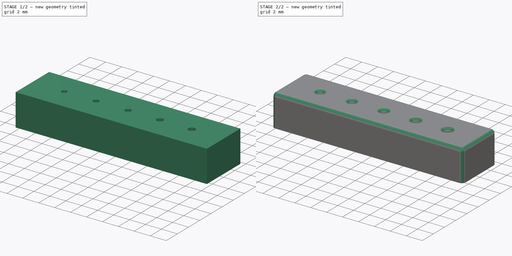
[diagram: build sequence overview — one tinted view per stage of 2, left to right]
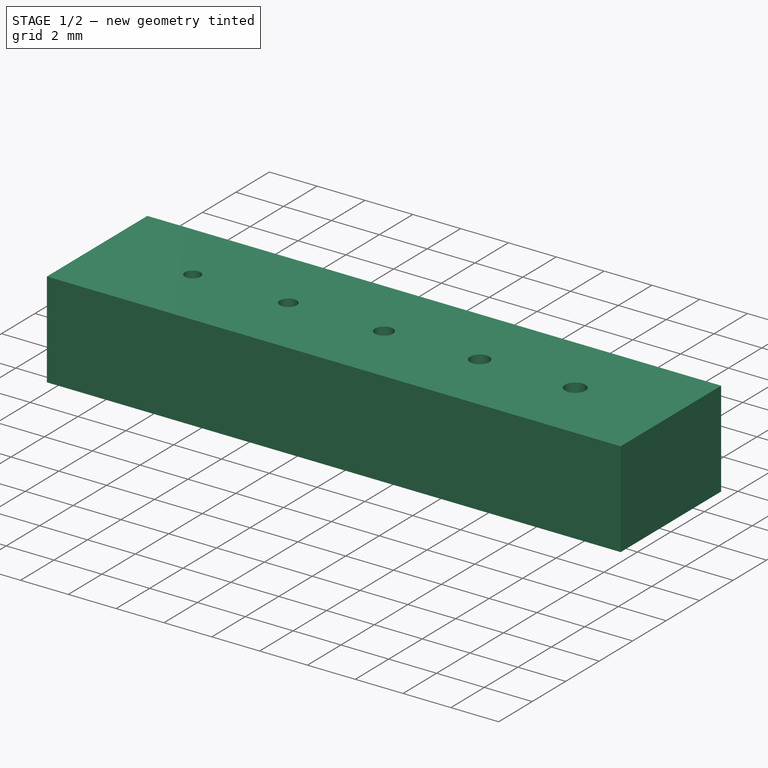
[diagram: stage 1 of 2 — iso view after this stage's code; geometry added in this stage tinted green]
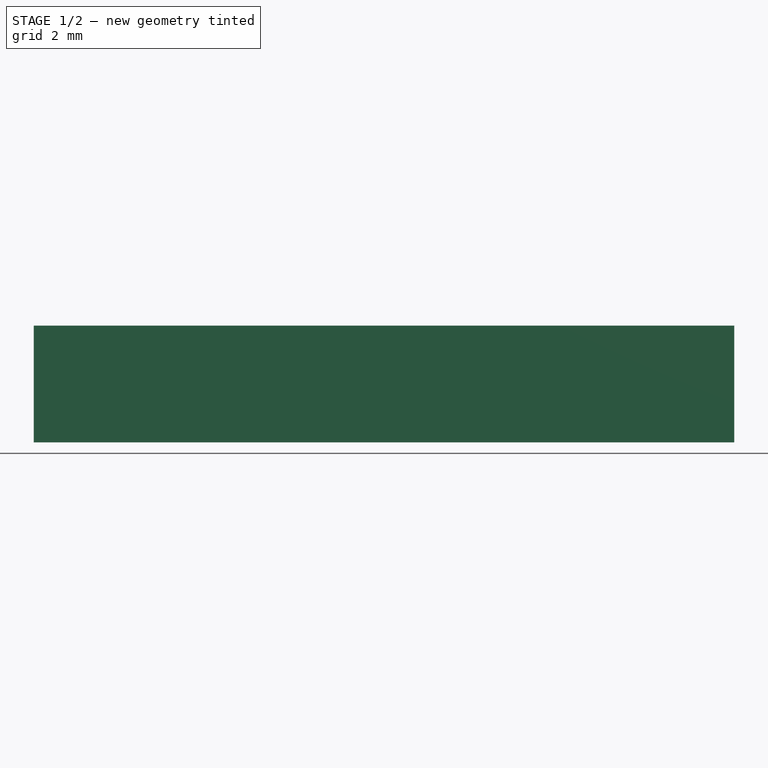
[diagram: stage 1 of 2 — front view after this stage's code; geometry added in this stage tinted green]
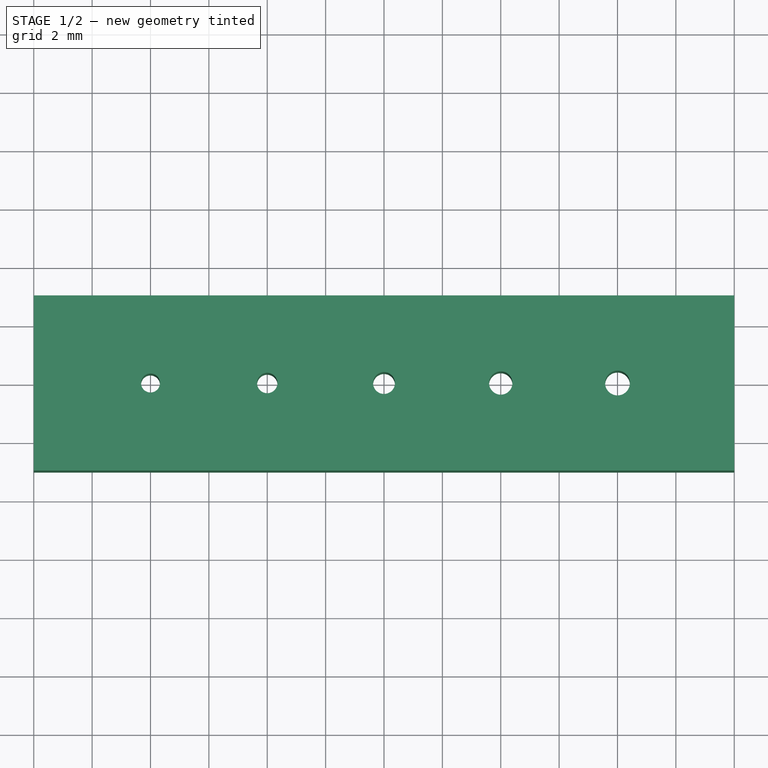
[diagram: stage 1 of 2 — top view after this stage's code; geometry added in this stage tinted green]
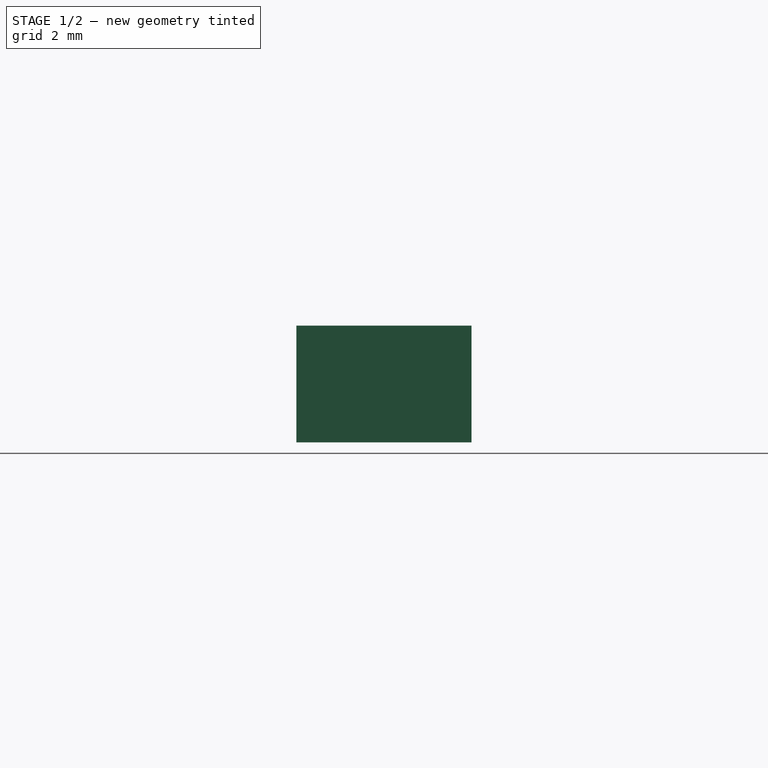
[diagram: stage 1 of 2 — right view after this stage's code; geometry added in this stage tinted green]
FCSTD DOCUMENT  (FreeCAD 0.19R23578 (Git))
Label: SmallHoleTest
License: All rights reserved
LicenseURL: http://en.wikipedia.org/wiki/All_rights_reserved
objects: Sketcher::SketchObject×1, PartDesign::Pad×1, PartDesign::Fillet×1, PartDesign::Body×1
note: 6 computed .brp shape members not serialized (recipe doc carries the construction recipe); baked Part::Feature solids carry a one-line shape summary decoded from their .brp

FEATURE [Sketcher::SketchObject] Sketch
  MapMode = 5
  Support = -> [XY_Plane]
  expr: Constraints[20] = .Constraints.R1 + 0.2mm
  expr: Constraints[19] = .Constraints.R1 + 0.15mm
  expr: Constraints[18] = .Constraints.R1 + 0.1mm
  expr: Constraints[5] = .Constraints.R1 + 0.05mm
  expr: Constraints[37] = .Constraints.Dist * 1.5
  sketch-geometry (15):
    g0: Circle CenterX=-8 CenterY=1e-16 CenterZ=0 NormalX=0 NormalY=0 NormalZ=1 AngleXU=0 Radius=0.325
    g1: Circle CenterX=-4 CenterY=1e-16 CenterZ=0 NormalX=0 NormalY=0 NormalZ=1 AngleXU=0 Radius=0.35
    g2: Circle CenterX=0 CenterY=1e-16 CenterZ=0 NormalX=0 NormalY=0 NormalZ=1 AngleXU=0 Radius=0.375
    g3: Circle CenterX=4 CenterY=1e-16 CenterZ=0 NormalX=0 NormalY=0 NormalZ=1 AngleXU=0 Radius=0.4
    g4: LineSegment StartX=-8 StartY=1e-16 StartZ=0 EndX=-4 EndY=1e-16 EndZ=0
    g5: LineSegment StartX=-4 StartY=1e-16 StartZ=0 EndX=0 EndY=1e-16 EndZ=0
    g6: LineSegment StartX=0 StartY=1e-16 StartZ=0 EndX=4 EndY=1e-16 EndZ=0
    g7: LineSegment StartX=4 StartY=1e-16 StartZ=0 EndX=8 EndY=1e-16 EndZ=0
    g8: Circle CenterX=8 CenterY=1e-16 CenterZ=0 NormalX=0 NormalY=0 NormalZ=1 AngleXU=0 Radius=0.425
    g9: LineSegment StartX=-12 StartY=3 StartZ=0 EndX=12 EndY=3 EndZ=0
    g10: LineSegment StartX=12 StartY=3 StartZ=0 EndX=12 EndY=-3 EndZ=0
    g11: LineSegment StartX=12 StartY=-3 StartZ=0 EndX=-12 EndY=-3 EndZ=0
    g12: LineSegment StartX=-12 StartY=-3 StartZ=0 EndX=-12 EndY=3 EndZ=0
    g13: LineSegment StartX=-8 StartY=1e-16 StartZ=0 EndX=-12 EndY=1e-16 EndZ=0
    g14: LineSegment StartX=8 StartY=1e-16 StartZ=0 EndX=12 EndY=1e-16 EndZ=0
  constraints (39):
    c: Diameter(g0) = 0.65  'R1'
    c: Coincident(g4,g0)
    c: Horizontal(g4)
    c: DistanceX(g4,g4) = 4  'Dist'
    c: Coincident(g1,g4)
    c: Diameter(g1) = 0.7
    c: Coincident(g5,g1)
    c: Horizontal(g5)
    c: Coincident(g6,g5)
    c: Horizontal(g6)
    c: Coincident(g7,g6)
    c: Horizontal(g7)
    c: Equal(g4,g5)
    c: Equal(g5,g6)
    c: Equal(g6,g7)
    c: Coincident(g2,g5)
    c: Coincident(g3,g6)
    c: Coincident(g8,g7)
    c: Diameter(g2) = 0.75
    c: Diameter(g3) = 0.8
    c: Diameter(g8) = 0.85
    c: Coincident(g9,g10)
    c: Coincident(g10,g11)
    c: Coincident(g11,g12)
    c: Coincident(g12,g9)
    c: Horizontal(g9)
    c: Horizontal(g11)
    c: Vertical(g10)
    c: Vertical(g12)
    c: Coincident(g13,g0)
    c: PointOnObject(g13,g12)
    c: Coincident(g14,g8)
    c: PointOnObject(g14,g10)
    c: Horizontal(g14)
    c: Equal(g7,g14)
    c: Equal(g4,g13)
    c: Symmetric(g9,g11,g13)
    c: DistanceY(g12,g12) = 6
    c: Symmetric(g11,g9,g-1)
FEATURE [PartDesign::Pad] Pad
  Direction = (1,1,1)
  Length = 4
  Length2 = 100
  Profile = -> Sketch
  Type = 0
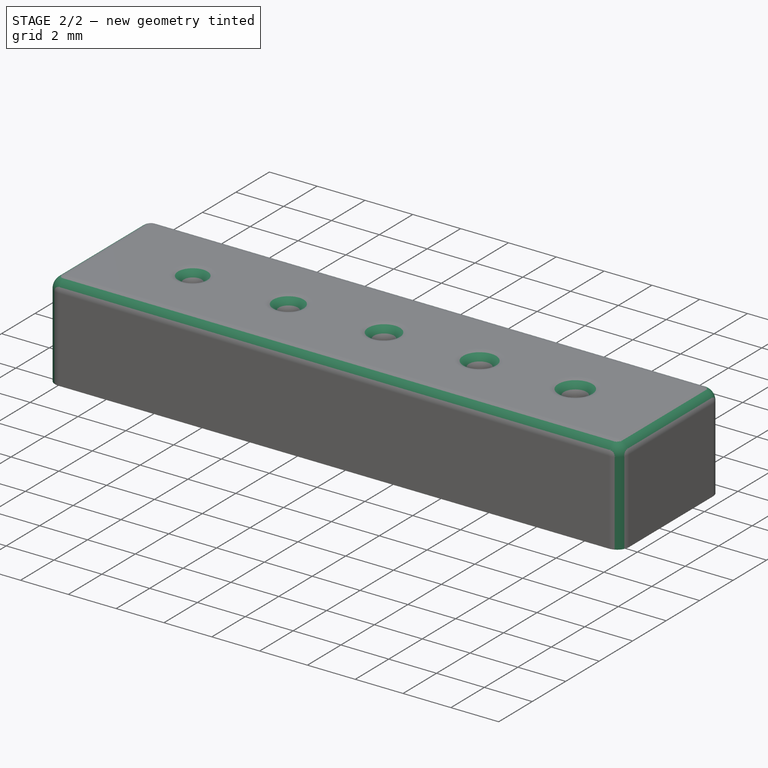
[diagram: stage 2 of 2 — iso view after this stage's code; geometry added in this stage tinted green]
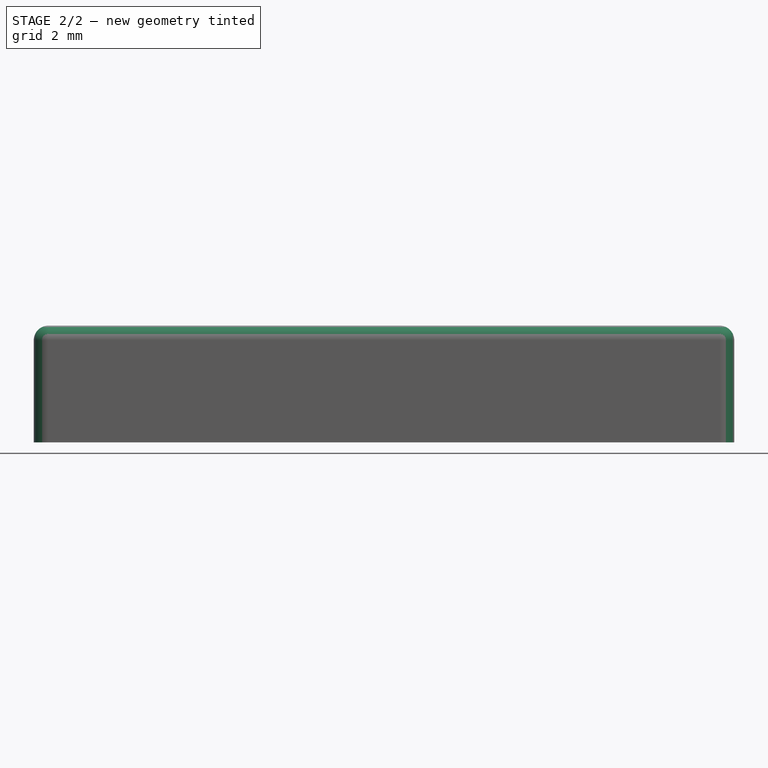
[diagram: stage 2 of 2 — front view after this stage's code; geometry added in this stage tinted green]
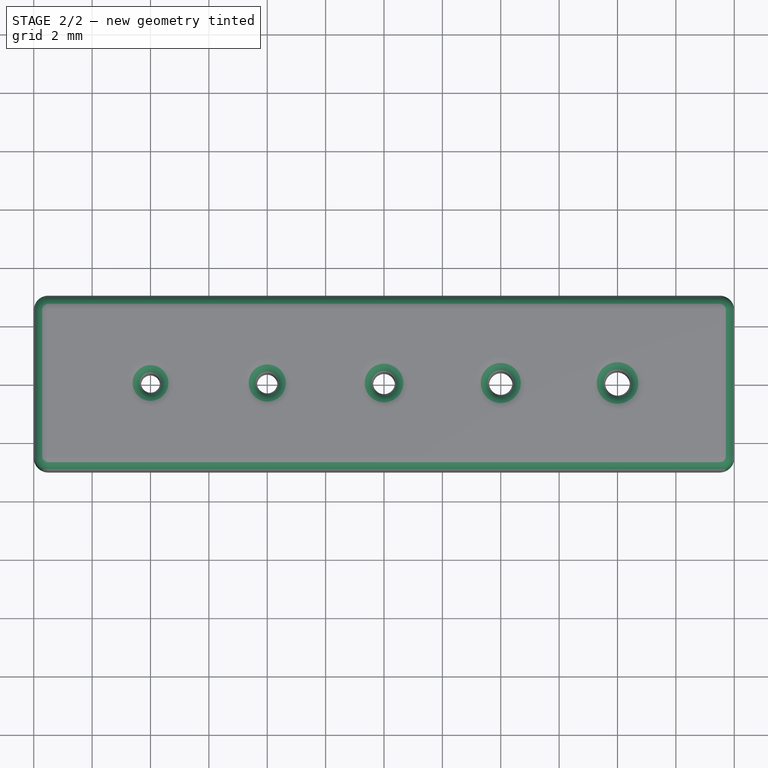
[diagram: stage 2 of 2 — top view after this stage's code; geometry added in this stage tinted green]
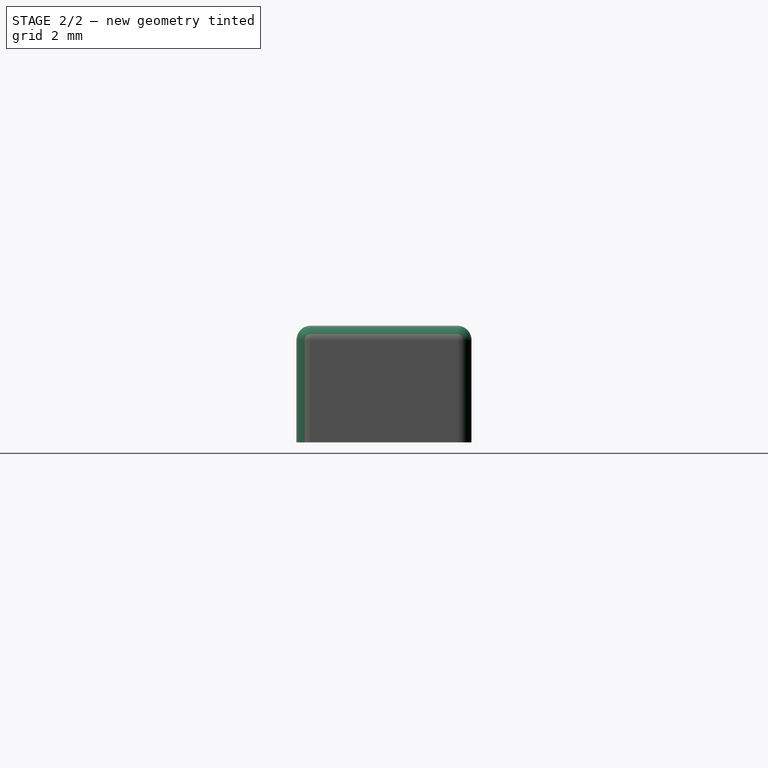
[diagram: stage 2 of 2 — right view after this stage's code; geometry added in this stage tinted green]
FEATURE [PartDesign::Fillet] Fillet
  Base = -> Pad [Face11,Edge8,Edge1,Edge5,Edge2]
  BaseFeature = -> Pad
  Radius = 0.5
  SupportTransform = false
FEATURE [PartDesign::Body] Body
  Group = -> [Sketch,Pad,Fillet]
  Origin = -> Origin
  Tip = -> Fillet
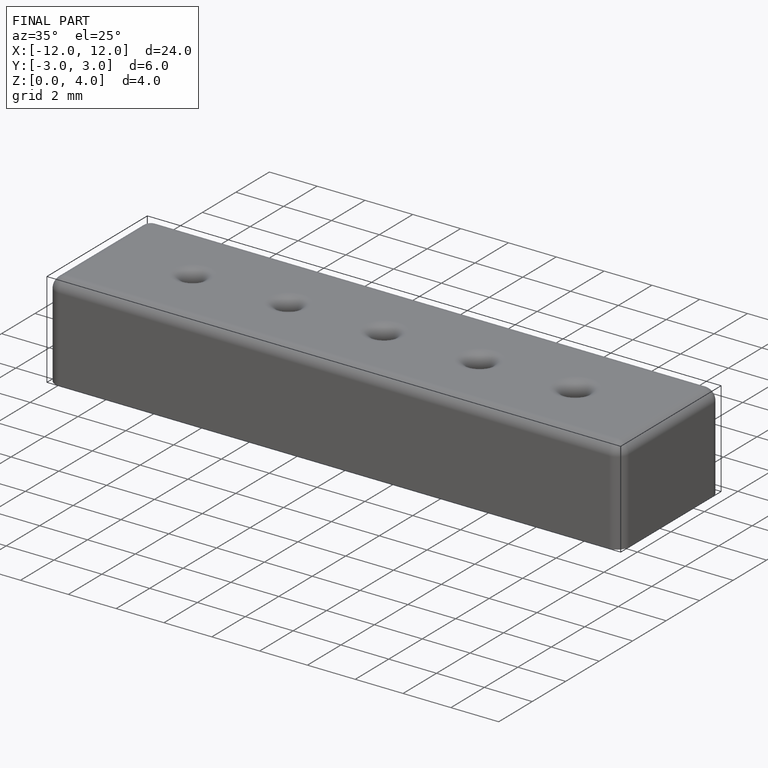
[diagram: finished part — iso view with bounding-box wireframe]
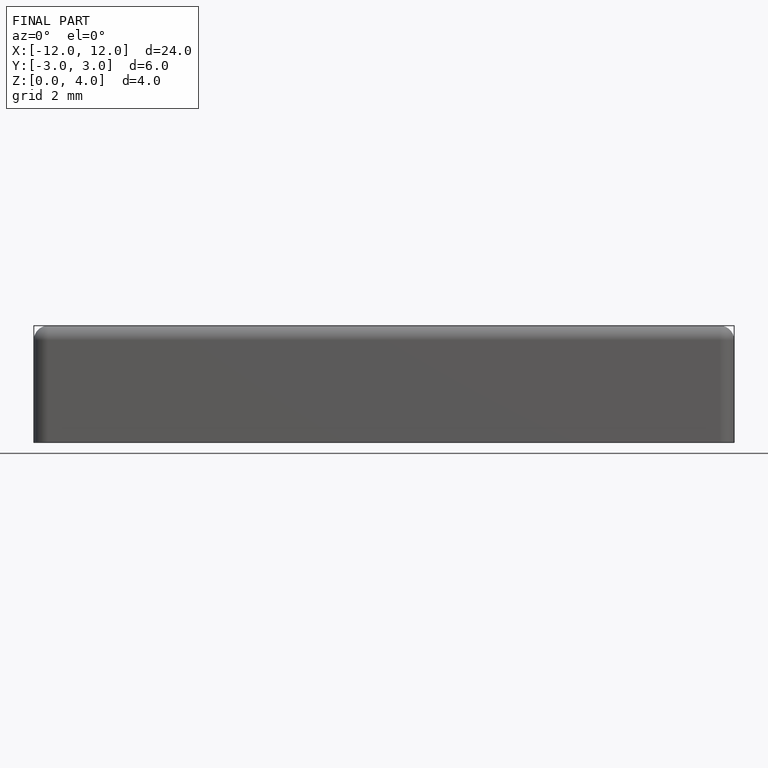
[diagram: finished part — front view with bounding-box wireframe]
